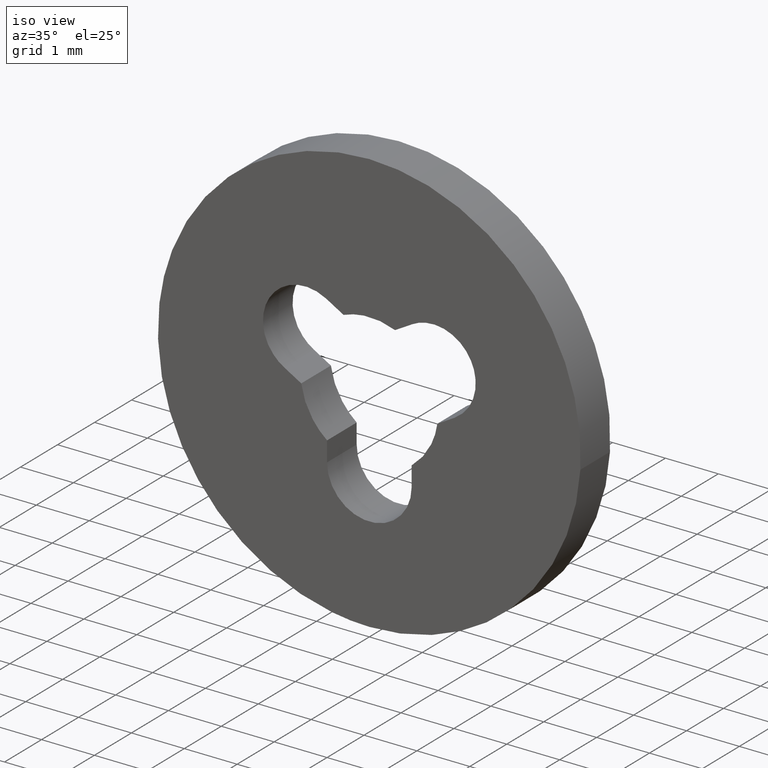
[diagram: clean part render]
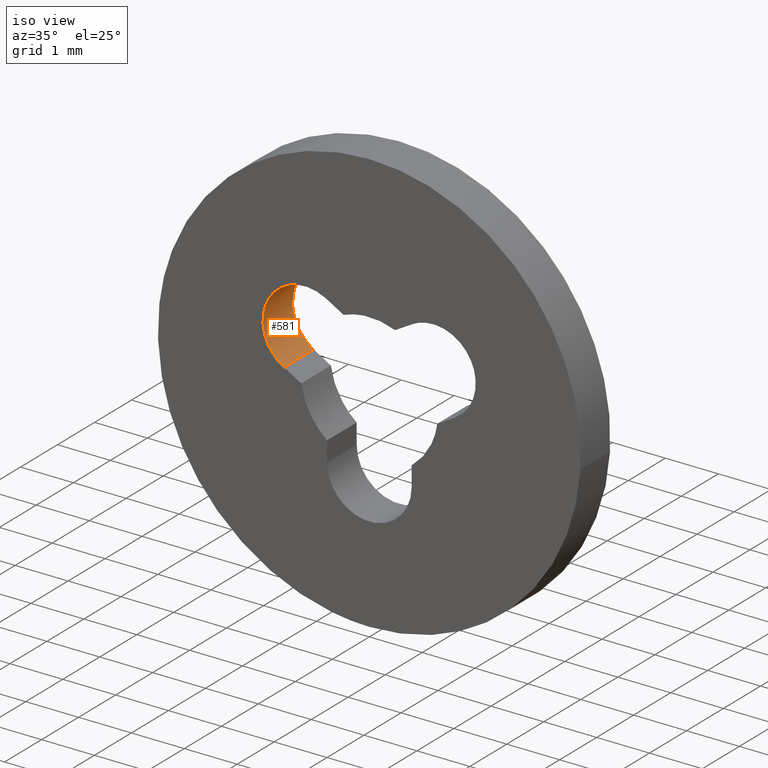
[diagram: same view with one face highlighted and labeled with its STEP entity id]
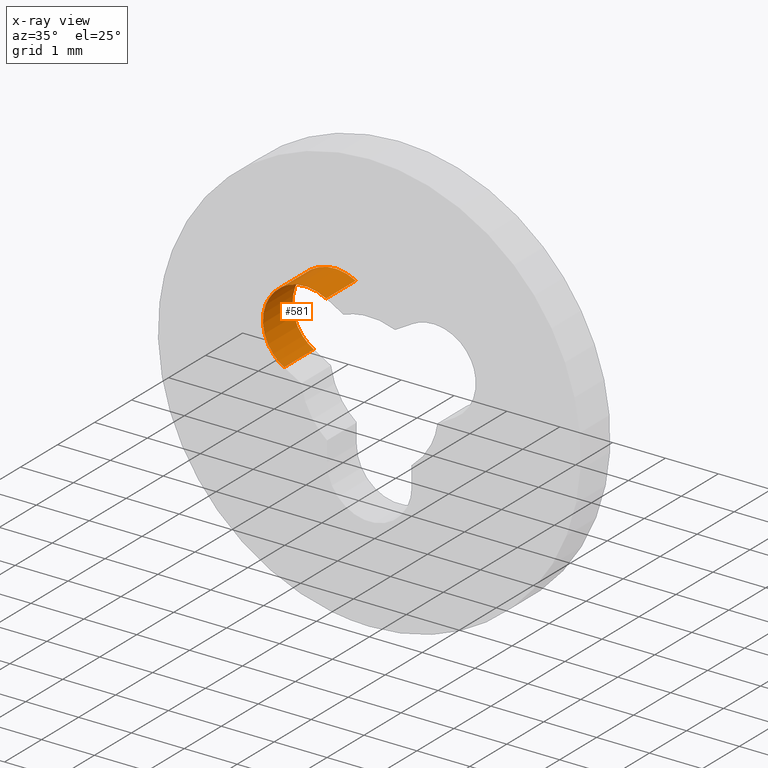
[diagram: x-ray of the same camera — body ghosted, the highlighted face saturated]
A machine part, iso view. The second image highlights one B-rep face of the part: STEP entity #581.
The next image is the same camera in x-ray: the body ghosted, the highlighted face saturated — about 0% of this face is hidden behind the body in this view.
In plain terms, the highlighted face is a freeform B-spline surface patch.
Its self-contained STEP definition (entity closure, byte-faithful):
#498=CARTESIAN_POINT('',(-1.612500000000000,0.0,0.007099999999994));
#499=VERTEX_POINT('',#498);
#506=CARTESIAN_POINT('',(-1.612500000000000,0.800000000000023,0.007099999999994));
#507=VERTEX_POINT('',#506);
#513=CARTESIAN_POINT('',(-1.612500000000000,0.800000000000023,0.007099999999994));
#514=CARTESIAN_POINT('',(-1.612500000000000,0.0,0.007099999999994));
#515=QUASI_UNIFORM_CURVE('',1,(#513,#514),.UNSPECIFIED.,.F.,.U.);
#516=EDGE_CURVE('',#507,#499,#515,.T.);
#521=CARTESIAN_POINT('',(-1.589743198719782,0.820000000000024,-0.005546802408356));
#522=CARTESIAN_POINT('',(-1.589743198719782,-0.020500000000001,-0.005546802408356));
#523=CARTESIAN_POINT('',(-2.333219605951958,0.820000000000024,0.391937266101206));
#524=CARTESIAN_POINT('',(-2.333219605951958,-0.020500000000001,0.391937266101206));
#525=CARTESIAN_POINT('',(-1.897369726827335,0.820000000000024,1.113592055939692));
#526=CARTESIAN_POINT('',(-1.897369726827335,-0.020500000000001,1.113592055939692));
#527=CARTESIAN_POINT('',(-1.461519847702711,0.820000000000024,1.835246845778179));
#528=CARTESIAN_POINT('',(-1.461519847702711,-0.020500000000001,1.835246845778179));
#529=CARTESIAN_POINT('',(-0.763664680875252,0.820000000000024,1.362225790261621));
#530=CARTESIAN_POINT('',(-0.763664680875252,-0.020500000000001,1.362225790261621));
#538=(BOUNDED_SURFACE()B_SPLINE_SURFACE(1,2,((#521,#523,#525,#527,#529),(#522,#524,#526,#528,#530)),.UNSPECIFIED.,.F.,.F.,.U.)B_SPLINE_SURFACE_WITH_KNOTS((2,2),(3,2,3),(0.0,1.0),(0.0,1.0,2.0),.UNSPECIFIED.)GEOMETRIC_REPRESENTATION_ITEM()RATIONAL_B_SPLINE_SURFACE(((1.0,0.688354575693754,1.0,0.688354575693754,1.0),(1.0,0.688354575693754,1.0,0.688354575693754,1.0)))REPRESENTATION_ITEM('')SURFACE());
#539=CARTESIAN_POINT('',(-0.817007166694730,0.0,1.395403062118780));
#540=VERTEX_POINT('',#539);
#541=CARTESIAN_POINT('',(-0.817007166694730,0.0,1.395403062118780));
#542=CARTESIAN_POINT('',(-1.510215076494561,0.0,1.789684260389432));
#543=CARTESIAN_POINT('',(-1.906699946760339,0.0,1.097734394308717));
#544=CARTESIAN_POINT('',(-2.303184817026117,0.0,0.405784528228002));
#545=CARTESIAN_POINT('',(-1.612499999999997,0.0,0.007099999999999));
#553=(BOUNDED_CURVE()B_SPLINE_CURVE(2,(#541,#542,#543,#544,#545),.UNSPECIFIED.,.F.,.U.)B_SPLINE_CURVE_WITH_KNOTS((3,2,3),(0.0,0.500000000000000,1.0),.UNSPECIFIED.)CURVE()GEOMETRIC_REPRESENTATION_ITEM()RATIONAL_B_SPLINE_CURVE((1.0,0.708230833594024,1.0,0.708230833594024,1.0))REPRESENTATION_ITEM(''));
#554=EDGE_CURVE('',#540,#499,#553,.T.);
#555=ORIENTED_EDGE('',*,*,#554,.T.);
#556=ORIENTED_EDGE('',*,*,#516,.F.);
#557=CARTESIAN_POINT('',(-0.817007166694730,0.800000000000023,1.395403062118780));
#558=VERTEX_POINT('',#557);
#559=CARTESIAN_POINT('',(-0.817007166694730,0.800000000000023,1.395403062118780));
#560=CARTESIAN_POINT('',(-1.510215076494561,0.800000000000023,1.789684260389432));
#561=CARTESIAN_POINT('',(-1.906699946760339,0.800000000000023,1.097734394308717));
#562=CARTESIAN_POINT('',(-2.303184817026117,0.800000000000023,0.405784528228002));
#563=CARTESIAN_POINT('',(-1.612499999999997,0.800000000000023,0.007099999999999));
#571=(BOUNDED_CURVE()B_SPLINE_CURVE(2,(#559,#560,#561,#562,#563),.UNSPECIFIED.,.F.,.U.)B_SPLINE_CURVE_WITH_KNOTS((3,2,3),(0.0,0.500000000000000,1.0),.UNSPECIFIED.)CURVE()GEOMETRIC_REPRESENTATION_ITEM()RATIONAL_B_SPLINE_CURVE((1.0,0.708230833594024,1.0,0.708230833594024,1.0))REPRESENTATION_ITEM(''));
#572=EDGE_CURVE('',#558,#507,#571,.T.);
#573=ORIENTED_EDGE('',*,*,#572,.F.);
#574=CARTESIAN_POINT('',(-0.817007166694730,0.800000000000023,1.395403062118780));
#575=CARTESIAN_POINT('',(-0.817007166694730,0.0,1.395403062118780));
#576=QUASI_UNIFORM_CURVE('',1,(#574,#575),.UNSPECIFIED.,.F.,.U.);
#577=EDGE_CURVE('',#558,#540,#576,.T.);
#578=ORIENTED_EDGE('',*,*,#577,.T.);
#579=EDGE_LOOP('',(#555,#556,#573,#578));
#580=FACE_OUTER_BOUND('',#579,.T.);
#581=ADVANCED_FACE('',(#580),#538,.F.);